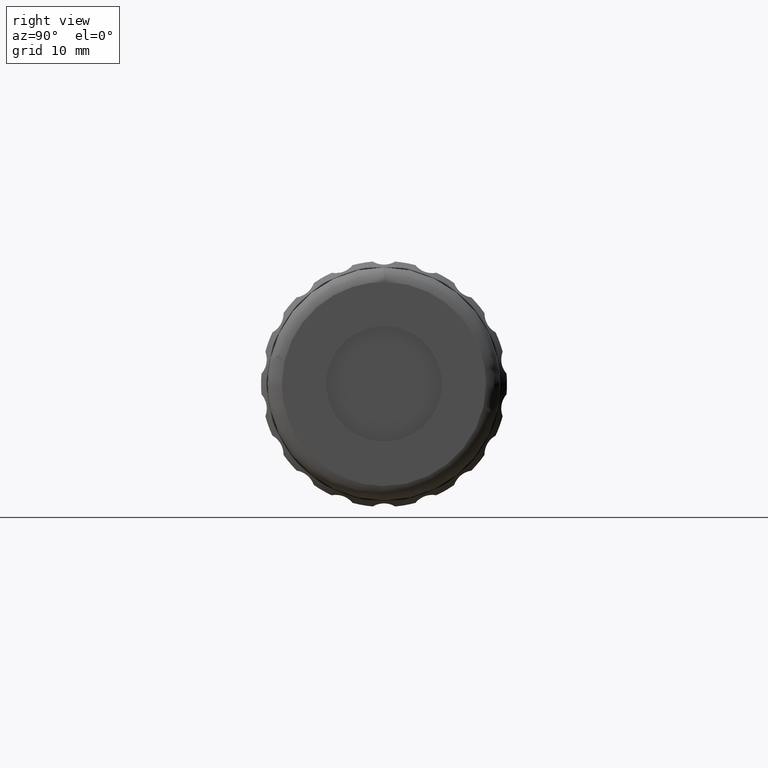
[diagram: clean part render]
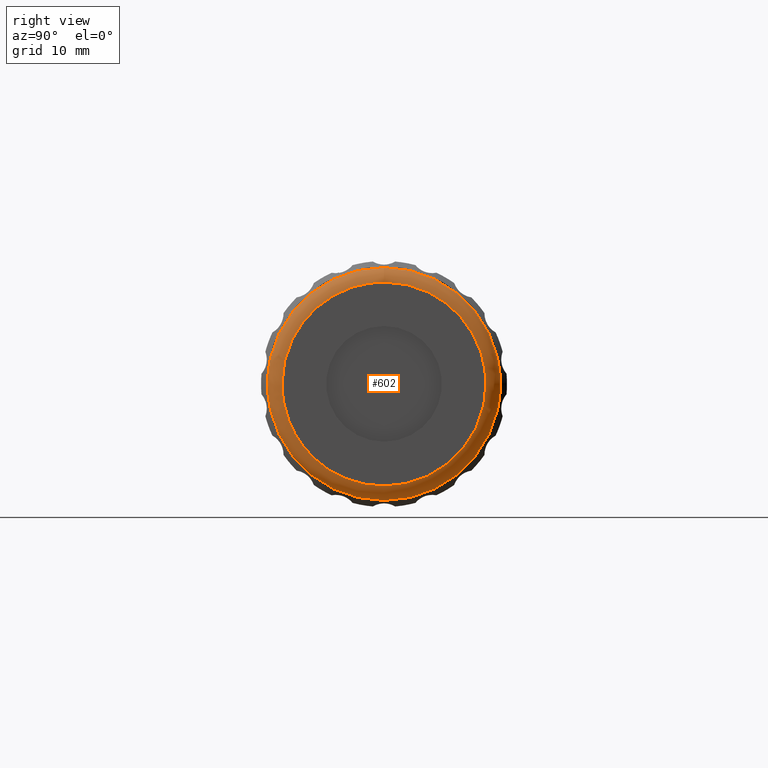
[diagram: same view with one face highlighted and labeled with its STEP entity id]
A machine part, right view. The second image highlights one B-rep face of the part: STEP entity #602.
In plain terms, the highlighted face is a freeform B-spline surface patch.
Its self-contained STEP definition (entity closure, byte-faithful):
#41 = CARTESIAN_POINT ( 'NONE',  ( 79.44685803487880094, 31.92096199999999584, -1.036051192078660836E-15 ) ) ;
#60 = CARTESIAN_POINT ( 'NONE',  ( 77.44685803487880094, 46.02096199999999726, 16.10000000000000142 ) ) ;
#66 = EDGE_CURVE ( 'NONE', #1894, #1210, #199, .T. ) ;
#88 = CARTESIAN_POINT ( 'NONE',  ( 77.44685803487880094, 29.92096199999999584, -32.20000000000000284 ) ) ;
#146 = CARTESIAN_POINT ( 'NONE',  ( 79.44685803487880094, 60.12096199999999868, 0.000000000000000000 ) ) ;
#199 =( BOUNDED_CURVE ( )  B_SPLINE_CURVE ( 3, ( #41, #1324, #1302, #363 ),
 .UNSPECIFIED., .F., .F. ) 
 B_SPLINE_CURVE_WITH_KNOTS ( ( 4, 4 ),
 ( 0.000000000000000000, 1.000000000000000000 ),
 .UNSPECIFIED. ) 
 CURVE ( )  GEOMETRIC_REPRESENTATION_ITEM ( )  RATIONAL_B_SPLINE_CURVE ( ( 1.000000000000000000, 0.8047378541243649375, 0.8047378541243649375, 1.000000000000000000 ) ) 
 REPRESENTATION_ITEM ( '' )  );
#218 = CARTESIAN_POINT ( 'NONE',  ( 79.44685803487881515, 31.92096199999999229, 28.20000000000000284 ) ) ;
#234 = CARTESIAN_POINT ( 'NONE',  ( 79.44685803487878673, 30.74938912474619102, -30.54314575050762315 ) ) ;
#239 = EDGE_LOOP ( 'NONE', ( #518, #544, #1533 ) ) ;
#240 = EDGE_CURVE ( 'NONE', #1210, #1507, #1221, .T. ) ;
#242 = CARTESIAN_POINT ( 'NONE',  ( 78.61843091013260221, 62.12096199999999868, 0.000000000000000000 ) ) ;
#253 = CARTESIAN_POINT ( 'NONE',  ( 79.44685803487881515, 60.12096199999999868, -28.20000000000000284 ) ) ;
#363 = CARTESIAN_POINT ( 'NONE',  ( 79.44685803487880094, 46.02096199999999726, 14.10000000000000142 ) ) ;
#379 = CARTESIAN_POINT ( 'NONE',  ( 77.44685803487880094, 62.12096199999999868, 0.000000000000000000 ) ) ;
#390 = CARTESIAN_POINT ( 'NONE',  ( 79.44685803487881515, 60.12096199999999868, 28.20000000000000284 ) ) ;
#400 = CARTESIAN_POINT ( 'NONE',  ( 79.44685803487881515, 31.92096199999999229, -28.20000000000000284 ) ) ;
#406 =( BOUNDED_CURVE ( )  B_SPLINE_CURVE ( 3, ( #507, #1966, #1340, #1013 ),
 .UNSPECIFIED., .F., .T. ) 
 B_SPLINE_CURVE_WITH_KNOTS ( ( 4, 4 ),
 ( 0.000000000000000000, 1.000000000000000000 ),
 .UNSPECIFIED. ) 
 CURVE ( )  GEOMETRIC_REPRESENTATION_ITEM ( )  RATIONAL_B_SPLINE_CURVE ( ( 1.000000000000000000, 0.3333333333333333703, 0.3333333333333333703, 1.000000000000000000 ) ) 
 REPRESENTATION_ITEM ( '' )  );
#497 = EDGE_LOOP ( 'NONE', ( #1197 ) ) ;
#507 = CARTESIAN_POINT ( 'NONE',  ( 79.44685803487880094, 60.12096199999999868, 0.000000000000000000 ) ) ;
#518 = ORIENTED_EDGE ( 'NONE', *, *, #240, .T. ) ;
#544 = ORIENTED_EDGE ( 'NONE', *, *, #1574, .T. ) ;
#558 = CARTESIAN_POINT ( 'NONE',  ( 78.61843091013261642, 29.92096199999999584, 32.20000000000000284 ) ) ;
#566 = CARTESIAN_POINT ( 'NONE',  ( 77.44685803487880094, 62.12096200000000579, 32.20000000000000284 ) ) ;
#602 = ADVANCED_FACE ( 'NONE', ( #718, #709 ), #1646, .T. ) ;
#622 = CARTESIAN_POINT ( 'NONE',  ( 77.44685803487880094, 46.02096199999999726, 0.000000000000000000 ) ) ;
#709 = FACE_OUTER_BOUND ( 'NONE', #497, .T. ) ;
#710 = CARTESIAN_POINT ( 'NONE',  ( 79.44685803487880094, 60.12096199999999868, 8.259588770539359359 ) ) ;
#718 = FACE_OUTER_BOUND ( 'NONE', #239, .T. ) ;
#895 = CARTESIAN_POINT ( 'NONE',  ( 79.44685803487880094, 31.92096199999999584, 0.000000000000000000 ) ) ;
#1013 = CARTESIAN_POINT ( 'NONE',  ( 79.44685803487880094, 31.92096199999999584, -1.036051192078660836E-15 ) ) ;
#1021 = CARTESIAN_POINT ( 'NONE',  ( 78.61843091013260221, 62.12096199999999868, 0.000000000000000000 ) ) ;
#1040 = CARTESIAN_POINT ( 'NONE',  ( 79.44685803487880094, 60.12096199999999868, 0.000000000000000000 ) ) ;
#1057 = CARTESIAN_POINT ( 'NONE',  ( 79.44685803487878673, 30.74938912474618391, 30.54314575050763025 ) ) ;
#1090 = DIRECTION ( 'NONE',  ( 0.000000000000000000, 0.000000000000000000, 1.000000000000000000 ) ) ;
#1194 = CARTESIAN_POINT ( 'NONE',  ( 78.61843091013261642, 29.92096199999999584, -32.20000000000000284 ) ) ;
#1197 = ORIENTED_EDGE ( 'NONE', *, *, #1413, .F. ) ;
#1204 = CARTESIAN_POINT ( 'NONE',  ( 79.44685803487880094, 30.74938912474618391, 0.000000000000000000 ) ) ;
#1210 = VERTEX_POINT ( 'NONE', #1657 ) ;
#1221 =( BOUNDED_CURVE ( )  B_SPLINE_CURVE ( 3, ( #2028, #1396, #710, #1373 ),
 .UNSPECIFIED., .F., .T. ) 
 B_SPLINE_CURVE_WITH_KNOTS ( ( 4, 4 ),
 ( 0.000000000000000000, 1.000000000000000000 ),
 .UNSPECIFIED. ) 
 CURVE ( )  GEOMETRIC_REPRESENTATION_ITEM ( )  RATIONAL_B_SPLINE_CURVE ( ( 1.000000000000000000, 0.8047378541243649375, 0.8047378541243649375, 1.000000000000000000 ) ) 
 REPRESENTATION_ITEM ( '' )  );
#1256 = CARTESIAN_POINT ( 'NONE',  ( 79.44685803487880094, 31.92096199999999584, -1.036051192078660836E-15 ) ) ;
#1274 = DIRECTION ( 'NONE',  ( -1.000000000000000000, 0.000000000000000000, 0.000000000000000000 ) ) ;
#1302 = CARTESIAN_POINT ( 'NONE',  ( 79.44685803487880094, 37.76137322946063790, 14.09999999999999964 ) ) ;
#1324 = CARTESIAN_POINT ( 'NONE',  ( 79.44685803487880094, 31.92096199999999584, 8.259588770539357583 ) ) ;
#1340 = CARTESIAN_POINT ( 'NONE',  ( 79.44685803487880094, 31.92096199999999584, -28.19999999999999929 ) ) ;
#1349 = CARTESIAN_POINT ( 'NONE',  ( 79.44685803487880094, 61.29253487525379995, 0.000000000000000000 ) ) ;
#1372 = CARTESIAN_POINT ( 'NONE',  ( 77.44685803487880094, 29.92096199999999584, 32.20000000000000284 ) ) ;
#1373 = CARTESIAN_POINT ( 'NONE',  ( 79.44685803487880094, 60.12096199999999868, 0.000000000000000000 ) ) ;
#1379 = CARTESIAN_POINT ( 'NONE',  ( 77.44685803487880094, 62.12096200000000579, -32.20000000000000284 ) ) ;
#1396 = CARTESIAN_POINT ( 'NONE',  ( 79.44685803487880094, 54.28055077053935662, 14.09999999999999964 ) ) ;
#1413 = EDGE_CURVE ( 'NONE', #1496, #1496, #1854, .T. ) ;
#1496 = VERTEX_POINT ( 'NONE', #60 ) ;
#1507 = VERTEX_POINT ( 'NONE', #146 ) ;
#1512 = AXIS2_PLACEMENT_3D ( 'NONE', #622, #1274, #1090 ) ;
#1531 = CARTESIAN_POINT ( 'NONE',  ( 79.44685803487880094, 60.12096199999999868, 0.000000000000000000 ) ) ;
#1533 = ORIENTED_EDGE ( 'NONE', *, *, #66, .T. ) ;
#1574 = EDGE_CURVE ( 'NONE', #1507, #1894, #406, .T. ) ;
#1646 =( BOUNDED_SURFACE ( )  B_SPLINE_SURFACE ( 3, 3, ( 
 ( #1855, #1379, #88, #1997, #1372, #566, #379 ),
 ( #1021, #2018, #1194, #1669, #558, #1689, #242 ),
 ( #1349, #2033, #234, #1204, #1057, #1863, #1707 ),
 ( #1531, #253, #400, #895, #218, #390, #1040 ) ),
 .UNSPECIFIED., .F., .T., .F. ) 
 B_SPLINE_SURFACE_WITH_KNOTS ( ( 4, 4 ),
 ( 4, 3, 4 ),
 ( 0.000000000000000000, 1.000000000000000000 ),
 ( 0.000000000000000000, 0.5000000000000000000, 1.000000000000000000 ),
 .UNSPECIFIED. ) 
 GEOMETRIC_REPRESENTATION_ITEM ( )  RATIONAL_B_SPLINE_SURFACE ( (
 ( 1.000000000000000000, 0.3333333333333333148, 0.3333333333333333148, 1.000000000000000000, 0.3333333333333333148, 0.3333333333333333148, 1.000000000000000000),
 ( 0.8047378541243649375, 0.2682459513747882940, 0.2682459513747882940, 0.8047378541243649375, 0.2682459513747882940, 0.2682459513747882940, 0.8047378541243649375),
 ( 0.8047378541243649375, 0.2682459513747882940, 0.2682459513747882940, 0.8047378541243649375, 0.2682459513747882940, 0.2682459513747882940, 0.8047378541243649375),
 ( 1.000000000000000000, 0.3333333333333333148, 0.3333333333333333148, 1.000000000000000000, 0.3333333333333333148, 0.3333333333333333148, 1.000000000000000000) ) ) 
 REPRESENTATION_ITEM ( '' )  SURFACE ( )  );
#1657 = CARTESIAN_POINT ( 'NONE',  ( 79.44685803487880094, 46.02096199999999726, 14.10000000000000142 ) ) ;
#1669 = CARTESIAN_POINT ( 'NONE',  ( 78.61843091013260221, 29.92096199999999939, 0.000000000000000000 ) ) ;
#1689 = CARTESIAN_POINT ( 'NONE',  ( 78.61843091013261642, 62.12096199999999868, 32.20000000000000284 ) ) ;
#1707 = CARTESIAN_POINT ( 'NONE',  ( 79.44685803487880094, 61.29253487525379995, 0.000000000000000000 ) ) ;
#1854 = CIRCLE ( 'NONE', #1512, 16.10000000000000142 ) ;
#1855 = CARTESIAN_POINT ( 'NONE',  ( 77.44685803487880094, 62.12096199999999868, 0.000000000000000000 ) ) ;
#1863 = CARTESIAN_POINT ( 'NONE',  ( 79.44685803487878673, 61.29253487525381416, 30.54314575050762315 ) ) ;
#1894 = VERTEX_POINT ( 'NONE', #1256 ) ;
#1966 = CARTESIAN_POINT ( 'NONE',  ( 79.44685803487880094, 60.12096200000000579, -28.19999999999999929 ) ) ;
#1997 = CARTESIAN_POINT ( 'NONE',  ( 77.44685803487880094, 29.92096199999999584, 0.000000000000000000 ) ) ;
#2018 = CARTESIAN_POINT ( 'NONE',  ( 78.61843091013261642, 62.12096199999999868, -32.20000000000000284 ) ) ;
#2028 = CARTESIAN_POINT ( 'NONE',  ( 79.44685803487880094, 46.02096199999999726, 14.10000000000000142 ) ) ;
#2033 = CARTESIAN_POINT ( 'NONE',  ( 79.44685803487878673, 61.29253487525381416, -30.54314575050762315 ) ) ;